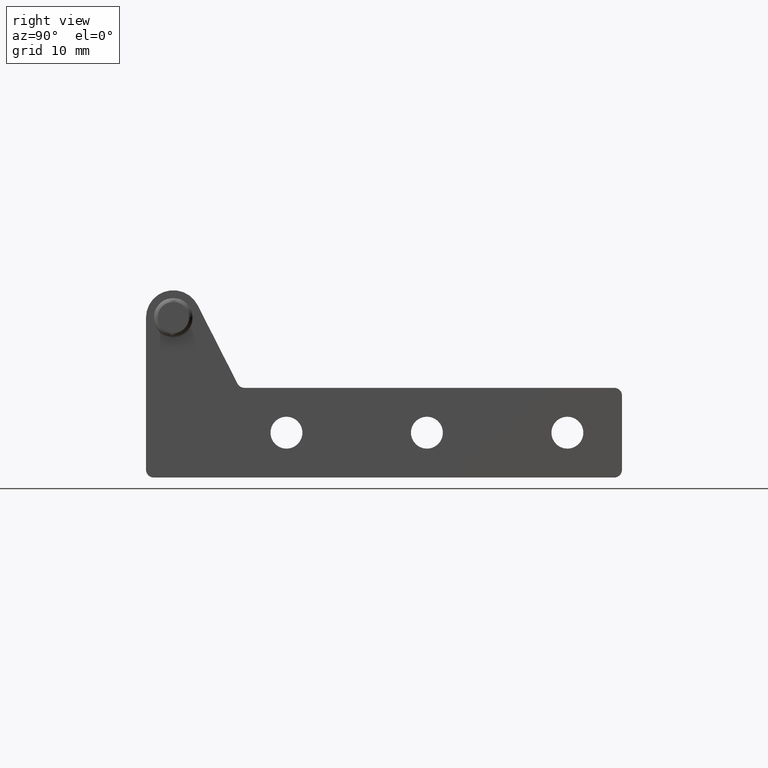
[diagram: clean part render]
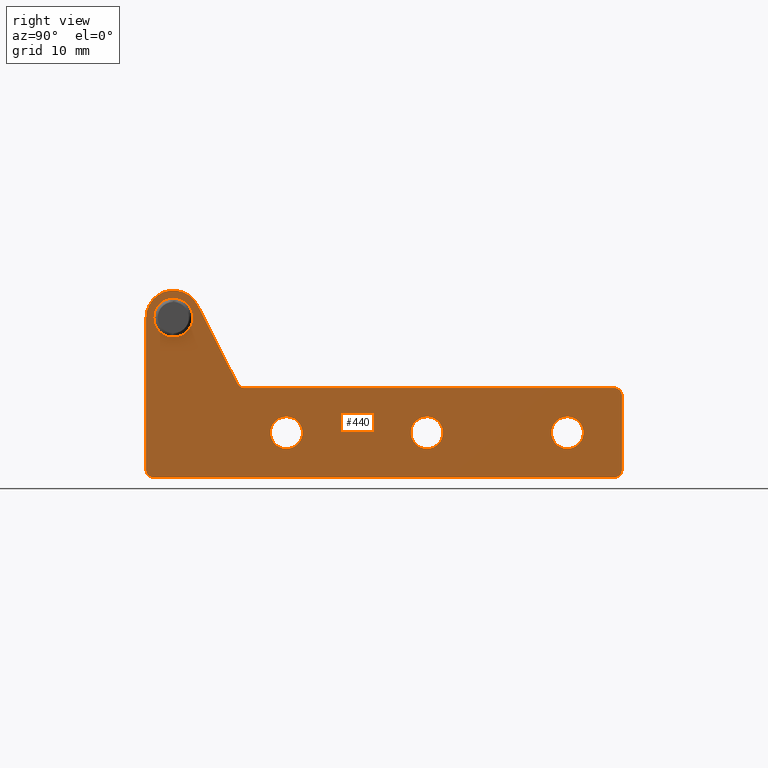
[diagram: same view with one face highlighted and labeled with its STEP entity id]
A machine part, right view. The second image highlights one B-rep face of the part: STEP entity #440.
In plain terms, the highlighted planar face has unit normal (1, 0, 0).
Its self-contained STEP definition (entity closure, byte-faithful):
#440=ADVANCED_FACE('',(#1555,#1556,#1557,#1558,#1559),#1554,.T.);
#1554=PLANE('',#2637);
#1555=FACE_OUTER_BOUND('',#2638,.T.);
#1556=FACE_BOUND('',#2639,.T.);
#1557=FACE_BOUND('',#2640,.T.);
#1558=FACE_BOUND('',#2641,.T.);
#1559=FACE_BOUND('',#2642,.T.);
#2634=CARTESIAN_POINT('',(-6.36000000000E+001,2.00000000000E+000,-2.29546784500E+001));
#2635=DIRECTION('',(-0.00000000000E+000,1.00000000000E+000,0.00000000000E+000));
#2636=DIRECTION('',(0.00000000000E+000,0.00000000000E+000,1.00000000000E+000));
#2637=AXIS2_PLACEMENT_3D('',#2634,#2635,#2636);
#2638=EDGE_LOOP('',(#3304,#3305,#3306,#3307,#3308,#3309,#3310,#3311,#3312,#3313));
#2639=EDGE_LOOP('',(#3314,#3315));
#2640=EDGE_LOOP('',(#3316,#3317));
#2641=EDGE_LOOP('',(#3318,#3319));
#2642=EDGE_LOOP('',(#3320,#3321));
#3304=ORIENTED_EDGE('',*,*,#3681,.F.);
#3305=ORIENTED_EDGE('',*,*,#3686,.F.);
#3306=ORIENTED_EDGE('',*,*,#3687,.F.);
#3307=ORIENTED_EDGE('',*,*,#3688,.F.);
#3308=ORIENTED_EDGE('',*,*,#3689,.T.);
#3309=ORIENTED_EDGE('',*,*,#3690,.F.);
#3310=ORIENTED_EDGE('',*,*,#3691,.F.);
#3311=ORIENTED_EDGE('',*,*,#3692,.F.);
#3312=ORIENTED_EDGE('',*,*,#3693,.F.);
#3313=ORIENTED_EDGE('',*,*,#3684,.F.);
#3314=ORIENTED_EDGE('',*,*,#3694,.T.);
#3315=ORIENTED_EDGE('',*,*,#3695,.T.);
#3316=ORIENTED_EDGE('',*,*,#3696,.T.);
#3317=ORIENTED_EDGE('',*,*,#3697,.T.);
#3318=ORIENTED_EDGE('',*,*,#3698,.T.);
#3319=ORIENTED_EDGE('',*,*,#3699,.T.);
#3320=ORIENTED_EDGE('',*,*,#3700,.F.);
#3321=ORIENTED_EDGE('',*,*,#3701,.F.);
#3681=EDGE_CURVE('',#5409,#5416,#5417,.T.);
#3684=EDGE_CURVE('',#5416,#5436,#5437,.T.);
#3686=EDGE_CURVE('',#5449,#5409,#5450,.T.);
#3687=EDGE_CURVE('',#5456,#5449,#5457,.T.);
#3688=EDGE_CURVE('',#5463,#5456,#5464,.T.);
#3689=EDGE_CURVE('',#5463,#5470,#5471,.T.);
#3690=EDGE_CURVE('',#5477,#5470,#5478,.T.);
#3691=EDGE_CURVE('',#5484,#5477,#5485,.T.);
#3692=EDGE_CURVE('',#5491,#5484,#5492,.T.);
#3693=EDGE_CURVE('',#5436,#5491,#5498,.T.);
#3694=EDGE_CURVE('',#5504,#5505,#5506,.T.);
#3695=EDGE_CURVE('',#5505,#5504,#5512,.T.);
#3696=EDGE_CURVE('',#5518,#5519,#5520,.T.);
#3697=EDGE_CURVE('',#5519,#5518,#5526,.T.);
#3698=EDGE_CURVE('',#5532,#5533,#5534,.T.);
#3699=EDGE_CURVE('',#5533,#5532,#5540,.T.);
#3700=EDGE_CURVE('',#5546,#5547,#5548,.T.);
#3701=EDGE_CURVE('',#5547,#5546,#5554,.T.);
#5409=VERTEX_POINT('',#6845);
#5416=VERTEX_POINT('',#6849);
#5417=CIRCLE('',#6853,1.00000000000E+000);
#5436=VERTEX_POINT('',#6861);
#5437=LINE('',#6862,#6863);
#5449=VERTEX_POINT('',#6868);
#5450=LINE('',#6869,#6870);
#5456=VERTEX_POINT('',#6872);
#5457=CIRCLE('',#6876,1.00000000000E+000);
#5463=VERTEX_POINT('',#6877);
#5464=LINE('',#6878,#6879);
#5470=VERTEX_POINT('',#6881);
#5471=CIRCLE('',#6885,1.00000000000E+000);
#5477=VERTEX_POINT('',#6886);
#5478=LINE('',#6887,#6888);
#5484=VERTEX_POINT('',#6890);
#5485=CIRCLE('',#6894,3.50000000000E+000);
#5491=VERTEX_POINT('',#6895);
#5492=LINE('',#6896,#6897);
#5498=CIRCLE('',#6902,1.00000000000E+000);
#5504=VERTEX_POINT('',#6903);
#5505=VERTEX_POINT('',#6904);
#5506=CIRCLE('',#6908,2.05000000000E+000);
#5512=CIRCLE('',#6912,2.05000000000E+000);
#5518=VERTEX_POINT('',#6913);
#5519=VERTEX_POINT('',#6914);
#5520=CIRCLE('',#6918,2.05000000000E+000);
#5526=CIRCLE('',#6922,2.05000000000E+000);
#5532=VERTEX_POINT('',#6923);
#5533=VERTEX_POINT('',#6924);
#5534=CIRCLE('',#6928,2.05000000000E+000);
#5540=CIRCLE('',#6932,2.05000000000E+000);
#5546=VERTEX_POINT('',#6933);
#5547=VERTEX_POINT('',#6934);
#5548=CIRCLE('',#6938,1.60000000000E+000);
#5554=CIRCLE('',#6942,1.60000000000E+000);
#6845=CARTESIAN_POINT('',(-5.75000000000E+001,2.00000000000E+000,-1.95000000000E+001));
#6849=CARTESIAN_POINT('',(-5.65000000000E+001,2.00000000000E+000,-2.05000000000E+001));
#6850=CARTESIAN_POINT('',(-5.65000000000E+001,2.00000000000E+000,-1.95000000000E+001));
#6851=DIRECTION('',(0.00000000000E+000,-1.00000000000E+000,0.00000000000E+000));
#6852=DIRECTION('',(-0.00000000000E+000,-0.00000000000E+000,-1.00000000000E+000));
#6853=AXIS2_PLACEMENT_3D('',#6850,#6851,#6852);
#6861=CARTESIAN_POINT('',(2.50000000000E+000,2.00000000000E+000,-2.05000000000E+001));
#6862=CARTESIAN_POINT('',(-5.65000000000E+001,2.00000000000E+000,-2.05000000000E+001));
#6863=VECTOR('',#6864,5.90000000000E+001);
#6864=DIRECTION('',(1.00000000000E+000,0.00000000000E+000,0.00000000000E+000));
#6868=CARTESIAN_POINT('',(-5.75000000000E+001,2.00000000000E+000,-1.00000000000E+001));
#6869=CARTESIAN_POINT('',(-5.75000000000E+001,2.00000000000E+000,-1.00000000000E+001));
#6870=VECTOR('',#6871,9.50000000000E+000);
#6871=DIRECTION('',(0.00000000000E+000,0.00000000000E+000,-1.00000000000E+000));
#6872=CARTESIAN_POINT('',(-5.65000000000E+001,2.00000000000E+000,-9.00000000000E+000));
#6873=CARTESIAN_POINT('',(-5.65000000000E+001,2.00000000000E+000,-1.00000000000E+001));
#6874=DIRECTION('',(0.00000000000E+000,-1.00000000000E+000,0.00000000000E+000));
#6875=DIRECTION('',(-0.00000000000E+000,-0.00000000000E+000,-1.00000000000E+000));
#6876=AXIS2_PLACEMENT_3D('',#6873,#6874,#6875);
#6877=CARTESIAN_POINT('',(-9.11351674310E+000,2.00000000000E+000,-9.00000000000E+000));
#6878=CARTESIAN_POINT('',(-9.11351674310E+000,2.00000000000E+000,-9.00000000000E+000));
#6879=VECTOR('',#6880,4.73864832569E+001);
#6880=DIRECTION('',(-1.00000000000E+000,0.00000000000E+000,0.00000000000E+000));
#6881=CARTESIAN_POINT('',(-8.22203825185E+000,2.00000000000E+000,-8.45306301951E+000));
#6882=CARTESIAN_POINT('',(-9.11351674310E+000,2.00000000000E+000,-8.00000000000E+000));
#6883=DIRECTION('',(0.00000000000E+000,-1.00000000000E+000,0.00000000000E+000));
#6884=DIRECTION('',(-0.00000000000E+000,-0.00000000000E+000,-1.00000000000E+000));
#6885=AXIS2_PLACEMENT_3D('',#6882,#6883,#6884);
#6886=CARTESIAN_POINT('',(-3.12017471936E+000,2.00000000000E+000,1.58572056828E+000));
#6887=CARTESIAN_POINT('',(-3.12017471936E+000,2.00000000000E+000,1.58572056828E+000));
#6888=VECTOR('',#6889,1.12608253439E+001);
#6889=DIRECTION('',(-4.53063019509E-001,0.00000000000E+000,-8.91478491245E-001));
#6890=CARTESIAN_POINT('',(3.50000000000E+000,2.00000000000E+000,0.00000000000E+000));
#6891=CARTESIAN_POINT('',(0.00000000000E+000,2.00000000000E+000,0.00000000000E+000));
#6892=DIRECTION('',(0.00000000000E+000,-1.00000000000E+000,0.00000000000E+000));
#6893=DIRECTION('',(-0.00000000000E+000,-0.00000000000E+000,-1.00000000000E+000));
#6894=AXIS2_PLACEMENT_3D('',#6891,#6892,#6893);
#6895=CARTESIAN_POINT('',(3.50000000000E+000,2.00000000000E+000,-1.95000000000E+001));
#6896=CARTESIAN_POINT('',(3.50000000000E+000,2.00000000000E+000,-1.95000000000E+001));
#6897=VECTOR('',#6898,1.95000000000E+001);
#6898=DIRECTION('',(0.00000000000E+000,0.00000000000E+000,1.00000000000E+000));
#6899=CARTESIAN_POINT('',(2.50000000000E+000,2.00000000000E+000,-1.95000000000E+001));
#6900=DIRECTION('',(0.00000000000E+000,-1.00000000000E+000,0.00000000000E+000));
#6901=DIRECTION('',(-0.00000000000E+000,-0.00000000000E+000,-1.00000000000E+000));
#6902=AXIS2_PLACEMENT_3D('',#6899,#6900,#6901);
#6903=CARTESIAN_POINT('',(-5.05000000000E+001,2.00000000000E+000,-1.27000000000E+001));
#6904=CARTESIAN_POINT('',(-5.05000000000E+001,2.00000000000E+000,-1.68000000000E+001));
#6905=CARTESIAN_POINT('',(-5.05000000000E+001,2.00000000000E+000,-1.47500000000E+001));
#6906=DIRECTION('',(0.00000000000E+000,-1.00000000000E+000,0.00000000000E+000));
#6907=DIRECTION('',(-1.22460635382E-016,0.00000000000E+000,1.00000000000E+000));
#6908=AXIS2_PLACEMENT_3D('',#6905,#6906,#6907);
#6909=CARTESIAN_POINT('',(-5.05000000000E+001,2.00000000000E+000,-1.47500000000E+001));
#6910=DIRECTION('',(0.00000000000E+000,-1.00000000000E+000,0.00000000000E+000));
#6911=DIRECTION('',(-1.22460635382E-016,0.00000000000E+000,1.00000000000E+000));
#6912=AXIS2_PLACEMENT_3D('',#6909,#6910,#6911);
#6913=CARTESIAN_POINT('',(-3.25000000000E+001,2.00000000000E+000,-1.27000000000E+001));
#6914=CARTESIAN_POINT('',(-3.25000000000E+001,2.00000000000E+000,-1.68000000000E+001));
#6915=CARTESIAN_POINT('',(-3.25000000000E+001,2.00000000000E+000,-1.47500000000E+001));
#6916=DIRECTION('',(0.00000000000E+000,-1.00000000000E+000,0.00000000000E+000));
#6917=DIRECTION('',(-1.22460635382E-016,0.00000000000E+000,1.00000000000E+000));
#6918=AXIS2_PLACEMENT_3D('',#6915,#6916,#6917);
#6919=CARTESIAN_POINT('',(-3.25000000000E+001,2.00000000000E+000,-1.47500000000E+001));
#6920=DIRECTION('',(0.00000000000E+000,-1.00000000000E+000,0.00000000000E+000));
#6921=DIRECTION('',(-1.22460635382E-016,0.00000000000E+000,1.00000000000E+000));
#6922=AXIS2_PLACEMENT_3D('',#6919,#6920,#6921);
#6923=CARTESIAN_POINT('',(-1.45000000000E+001,2.00000000000E+000,-1.27000000000E+001));
#6924=CARTESIAN_POINT('',(-1.45000000000E+001,2.00000000000E+000,-1.68000000000E+001));
#6925=CARTESIAN_POINT('',(-1.45000000000E+001,2.00000000000E+000,-1.47500000000E+001));
#6926=DIRECTION('',(0.00000000000E+000,-1.00000000000E+000,0.00000000000E+000));
#6927=DIRECTION('',(-1.22460635382E-016,0.00000000000E+000,1.00000000000E+000));
#6928=AXIS2_PLACEMENT_3D('',#6925,#6926,#6927);
#6929=CARTESIAN_POINT('',(-1.45000000000E+001,2.00000000000E+000,-1.47500000000E+001));
#6930=DIRECTION('',(0.00000000000E+000,-1.00000000000E+000,0.00000000000E+000));
#6931=DIRECTION('',(-1.22460635382E-016,0.00000000000E+000,1.00000000000E+000));
#6932=AXIS2_PLACEMENT_3D('',#6929,#6930,#6931);
#6933=CARTESIAN_POINT('',(7.40148683083E-017,2.00000000000E+000,-1.60000000000E+000));
#6934=CARTESIAN_POINT('',(0.00000000000E+000,2.00000000000E+000,1.60000000000E+000));
#6935=CARTESIAN_POINT('',(0.00000000000E+000,2.00000000000E+000,0.00000000000E+000));
#6936=DIRECTION('',(0.00000000000E+000,1.00000000000E+000,-0.00000000000E+000));
#6937=DIRECTION('',(-1.22460635382E-016,0.00000000000E+000,1.00000000000E+000));
#6938=AXIS2_PLACEMENT_3D('',#6935,#6936,#6937);
#6939=CARTESIAN_POINT('',(0.00000000000E+000,2.00000000000E+000,0.00000000000E+000));
#6940=DIRECTION('',(0.00000000000E+000,1.00000000000E+000,-0.00000000000E+000));
#6941=DIRECTION('',(-1.22460635382E-016,0.00000000000E+000,1.00000000000E+000));
#6942=AXIS2_PLACEMENT_3D('',#6939,#6940,#6941);